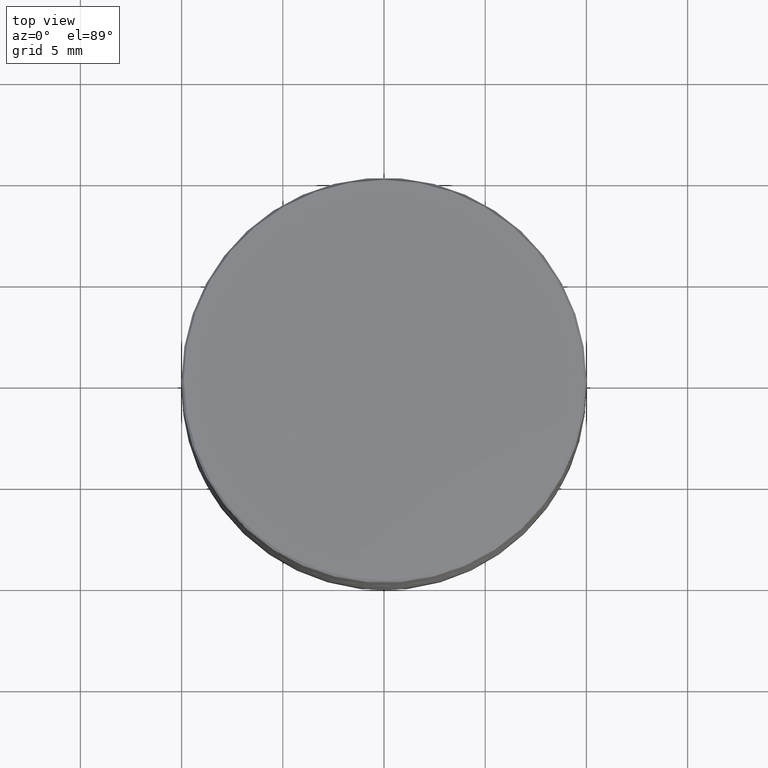
[diagram: clean part render]
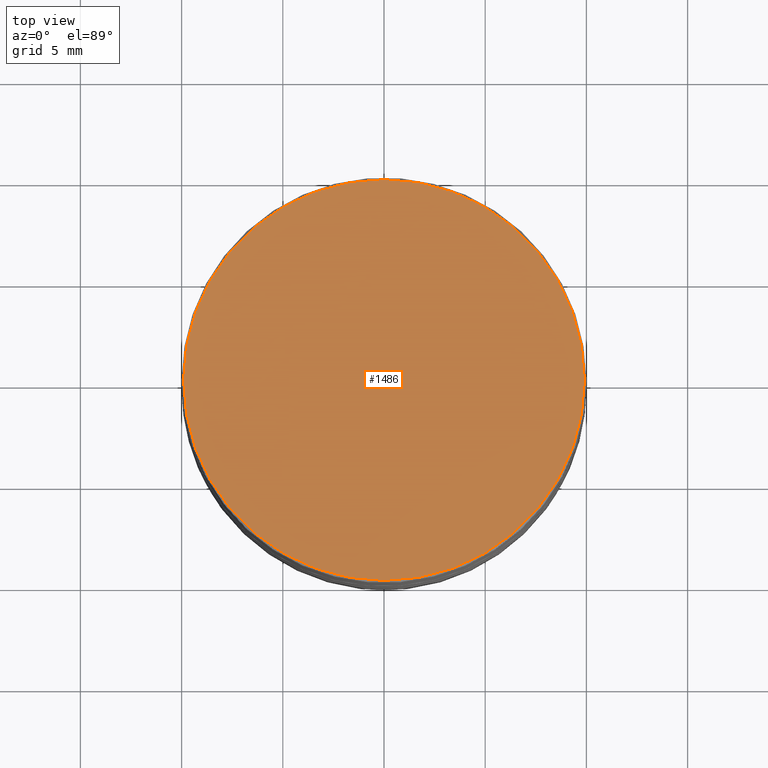
[diagram: same view with one face highlighted and labeled with its STEP entity id]
A machine part, top view. The second image highlights one B-rep face of the part: STEP entity #1486.
In plain terms, the highlighted planar face has unit normal (0, -0, 1).
Its self-contained STEP definition (entity closure, byte-faithful):
#12 = CIRCLE ( 'NONE', #1564, 9.900000000000002132 ) ;
#38 = AXIS2_PLACEMENT_3D ( 'NONE', #1494, #1141, #375 ) ;
#80 = ORIENTED_EDGE ( 'NONE', *, *, #368, .T. ) ;
#109 = AXIS2_PLACEMENT_3D ( 'NONE', #1021, #1258, #512 ) ;
#198 = DIRECTION ( 'NONE',  ( 1.000000000000000000, 0.000000000000000000, 0.000000000000000000 ) ) ;
#339 = VERTEX_POINT ( 'NONE', #1633 ) ;
#368 = EDGE_CURVE ( 'NONE', #1526, #339, #1467, .T. ) ;
#375 = DIRECTION ( 'NONE',  ( 1.000000000000000000, 0.000000000000000000, 0.000000000000000000 ) ) ;
#437 = ORIENTED_EDGE ( 'NONE', *, *, #854, .T. ) ;
#512 = DIRECTION ( 'NONE',  ( 1.000000000000000000, 0.000000000000000000, 0.000000000000000000 ) ) ;
#854 = EDGE_CURVE ( 'NONE', #339, #1526, #12, .T. ) ;
#874 = CARTESIAN_POINT ( 'NONE',  ( 9.900000000000002132, 1.218523565151616578E-15, 0.000000000000000000 ) ) ;
#1021 = CARTESIAN_POINT ( 'NONE',  ( 0.000000000000000000, 0.000000000000000000, 0.000000000000000000 ) ) ;
#1101 = EDGE_LOOP ( 'NONE', ( #437, #80 ) ) ;
#1137 = PLANE ( 'NONE',  #109 ) ;
#1141 = DIRECTION ( 'NONE',  ( -0.000000000000000000, -0.000000000000000000, 1.000000000000000000 ) ) ;
#1210 = DIRECTION ( 'NONE',  ( -0.000000000000000000, -0.000000000000000000, 1.000000000000000000 ) ) ;
#1258 = DIRECTION ( 'NONE',  ( 0.000000000000000000, -0.000000000000000000, 1.000000000000000000 ) ) ;
#1467 = CIRCLE ( 'NONE', #38, 9.900000000000002132 ) ;
#1486 = ADVANCED_FACE ( 'NONE', ( #1621 ), #1137, .T. ) ;
#1494 = CARTESIAN_POINT ( 'NONE',  ( 0.000000000000000000, 0.000000000000000000, 0.000000000000000000 ) ) ;
#1526 = VERTEX_POINT ( 'NONE', #874 ) ;
#1548 = CARTESIAN_POINT ( 'NONE',  ( 0.000000000000000000, 0.000000000000000000, 0.000000000000000000 ) ) ;
#1564 = AXIS2_PLACEMENT_3D ( 'NONE', #1548, #1210, #198 ) ;
#1621 = FACE_OUTER_BOUND ( 'NONE', #1101, .T. ) ;
#1633 = CARTESIAN_POINT ( 'NONE',  ( -9.900000000000002132, 0.000000000000000000, 0.000000000000000000 ) ) ;